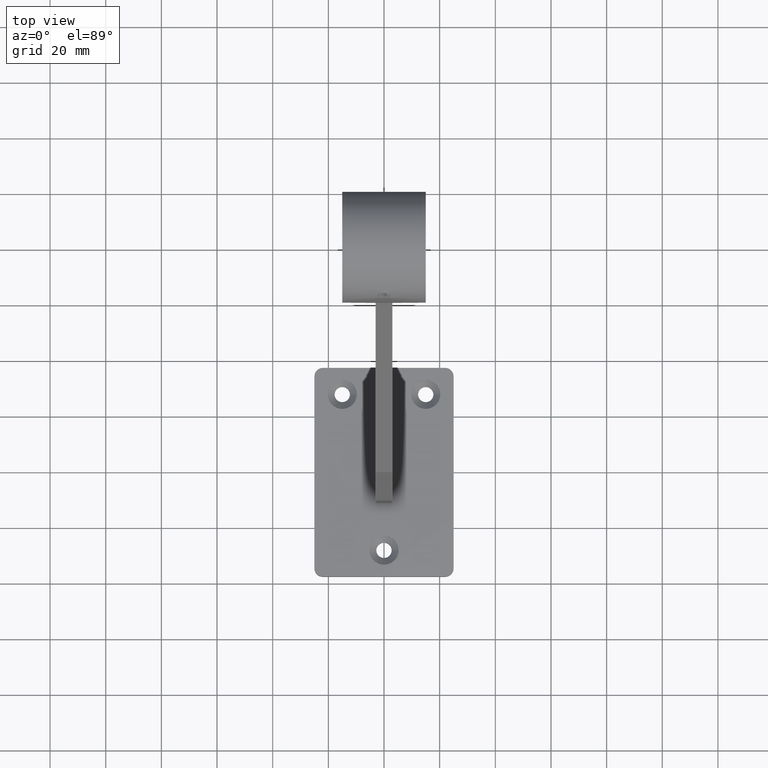
[diagram: clean part render]
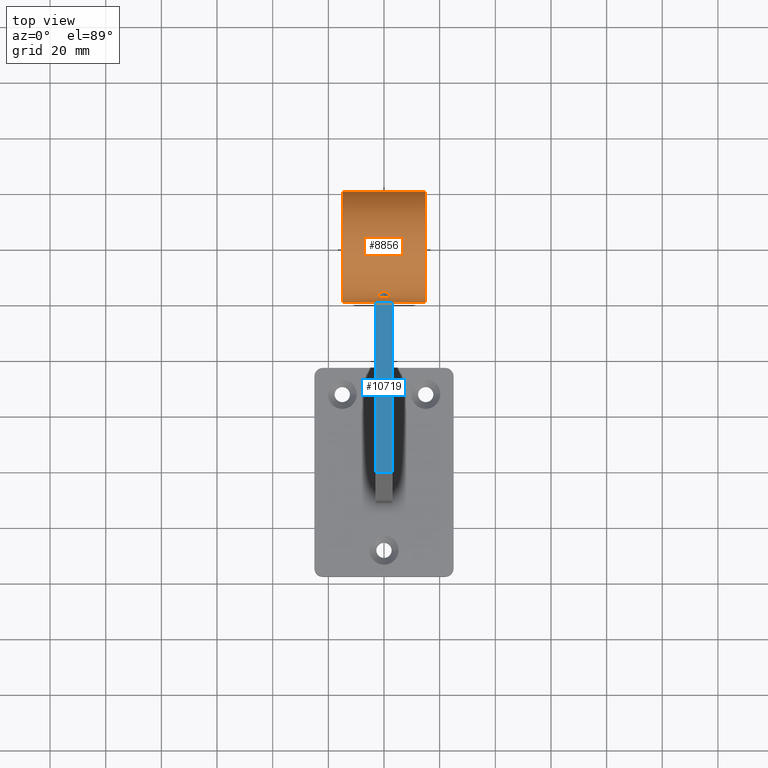
[diagram: same view with the hole feature highlighted: cylindrical wall and planar end face, labeled with their STEP entity ids]
A machine part, top view. The highlighted faces form one hole feature of diameter 40 mm: the cylindrical wall (entity #8856, orange) and its adjacent planar end face (entity #10719, blue) — they share a circular edge in the B-rep.
Wall:
#31 = CARTESIAN_POINT ( 'NONE',  ( -2.099849444172510182, 60.04187292871998949, 209.7616052908302038 ) ) ;
#76 = CARTESIAN_POINT ( 'NONE',  ( 2.086120174710769604, 60.31936522021673142, 210.2393268370281589 ) ) ;
#380 = CARTESIAN_POINT ( 'NONE',  ( 3.000000000000000000, 74.12084583836528395, 180.2875339657386746 ) ) ;
#495 = EDGE_CURVE ( 'NONE', #3199, #3988, #5500, .T. ) ;
#715 = CARTESIAN_POINT ( 'NONE',  ( 15.00000000000000000, 77.50000000000001421, 200.0000000000000000 ) ) ;
#756 = CIRCLE ( 'NONE', #1583, 19.99999999999998934 ) ;
#830 = CYLINDRICAL_SURFACE ( 'NONE', #9199, 19.99999999999998934 ) ;
#875 = CARTESIAN_POINT ( 'NONE',  ( -1.670293940757276996, 60.85481119492352775, 211.0883122554907061 ) ) ;
#912 = CARTESIAN_POINT ( 'NONE',  ( -1.280318656861042292, 59.40476119550915257, 208.5186960749441027 ) ) ;
#1001 = CARTESIAN_POINT ( 'NONE',  ( -1.678640727734455940, 59.56922178814136259, 208.8614267129789539 ) ) ;
#1045 = CARTESIAN_POINT ( 'NONE',  ( -0.9315369050295014830, 59.31315052598299076, 208.3211364556919420 ) ) ;
#1168 = EDGE_CURVE ( 'NONE', #12045, #12045, #756, .T. ) ;
#1583 = AXIS2_PLACEMENT_3D ( 'NONE', #11361, #4693, #12271 ) ;
#1705 = CIRCLE ( 'NONE', #9897, 19.99999999999998934 ) ;
#1829 = EDGE_CURVE ( 'NONE', #7303, #7303, #9042, .T. ) ;
#1843 = CARTESIAN_POINT ( 'NONE',  ( -1.626303258728256651E-16, 59.22523585067133922, 208.1260688703955850 ) ) ;
#1888 = CARTESIAN_POINT ( 'NONE',  ( -2.100074804773034653, 60.24743821746338313, 210.1177021409254735 ) ) ;
#1926 = CARTESIAN_POINT ( 'NONE',  ( -1.052116685481080616, 59.34013478617814741, 208.3800444882257352 ) ) ;
#1977 = EDGE_LOOP ( 'NONE', ( #7965 ) ) ;
#2003 = CARTESIAN_POINT ( 'NONE',  ( 1.991928002489058880, 60.52867097317005118, 210.5825403384284584 ) ) ;
#2012 = VERTEX_POINT ( 'NONE', #5032 ) ;
#2015 = DIRECTION ( 'NONE',  ( 0.000000000000000000, 0.000000000000000000, -1.000000000000000000 ) ) ;
#2327 = FACE_BOUND ( 'NONE', #11472, .T. ) ;
#2351 = ORIENTED_EDGE ( 'NONE', *, *, #495, .F. ) ;
#2622 = CARTESIAN_POINT ( 'NONE',  ( -0.1388385924742107924, 59.22523585067135343, 208.1260688703955850 ) ) ;
#2823 = CARTESIAN_POINT ( 'NONE',  ( -2.086423598058442241, 60.31830531067652146, 210.2375543658677373 ) ) ;
#2944 = CARTESIAN_POINT ( 'NONE',  ( -0.9315325815406654275, 61.20026141186282587, 211.5897078484736085 ) ) ;
#3003 = DIRECTION ( 'NONE',  ( 1.000000000000000000, -0.000000000000000000, 0.000000000000000000 ) ) ;
#3059 = ORIENTED_EDGE ( 'NONE', *, *, #1168, .T. ) ;
#3184 = ORIENTED_EDGE ( 'NONE', *, *, #5961, .T. ) ;
#3199 = VERTEX_POINT ( 'NONE', #11689 ) ;
#3320 = AXIS2_PLACEMENT_3D ( 'NONE', #10477, #7659, #2015 ) ;
#3618 = EDGE_LOOP ( 'NONE', ( #3059 ) ) ;
#3760 = CARTESIAN_POINT ( 'NONE',  ( -0.5463526274472203514, 61.28529523982813743, 211.7082911560165428 ) ) ;
#3804 = CARTESIAN_POINT ( 'NONE',  ( 0.2776771849484437893, 59.22523585067132501, 208.1260688703956134 ) ) ;
#3841 = CARTESIAN_POINT ( 'NONE',  ( 0.2734060226828158857, 61.32529560801894775, 211.7634577332678987 ) ) ;
#3877 = CARTESIAN_POINT ( 'NONE',  ( 1.671365527344146784, 59.57524578909325896, 208.8722185184736304 ) ) ;
#3956 = EDGE_CURVE ( 'NONE', #8507, #6369, #11791, .T. ) ;
#3988 = VERTEX_POINT ( 'NONE', #8895 ) ;
#4110 = EDGE_CURVE ( 'NONE', #2012, #2012, #7895, .T. ) ;
#4504 = AXIS2_PLACEMENT_3D ( 'NONE', #5077, #8511, #5820 ) ;
#4571 = CARTESIAN_POINT ( 'NONE',  ( -1.626303258728256651E-16, 59.22523585067133922, 208.1260688703955850 ) ) ;
#4611 = CARTESIAN_POINT ( 'NONE',  ( 1.582817562824778035, 59.52754173596890297, 208.7749747424895475 ) ) ;
#4654 = ORIENTED_EDGE ( 'NONE', *, *, #10804, .F. ) ;
#4656 = CARTESIAN_POINT ( 'NONE',  ( -1.281598436421852005, 61.07439037770274837, 211.4107483233221387 ) ) ;
#4693 = DIRECTION ( 'NONE',  ( 1.000000000000000000, 0.000000000000000000, 0.000000000000000000 ) ) ;
#4701 = CARTESIAN_POINT ( 'NONE',  ( -1.835071421527967539, 59.67379713497279425, 209.0714069648180384 ) ) ;
#4781 = CARTESIAN_POINT ( 'NONE',  ( -1.887941955898316371, 60.66279453426110280, 210.7946613348223934 ) ) ;
#4989 = CARTESIAN_POINT ( 'NONE',  ( -15.00000000000000000, 77.50000000000001421, 180.0000000000000284 ) ) ;
#5032 = CARTESIAN_POINT ( 'NONE',  ( 0.000000000000000000, 59.22523585067133922, 208.1260688703955566 ) ) ;
#5077 = CARTESIAN_POINT ( 'NONE',  ( -3.000000000000000000, 77.50000000000001421, 200.0000000000000000 ) ) ;
#5500 = LINE ( 'NONE', #12178, #11269 ) ;
#5583 = CARTESIAN_POINT ( 'NONE',  ( 1.058653085803445748, 59.33516931573331732, 208.3695909718071277 ) ) ;
#5624 = CARTESIAN_POINT ( 'NONE',  ( -2.044598998160860770, 59.90882811179424294, 209.5191703685799212 ) ) ;
#5665 = CARTESIAN_POINT ( 'NONE',  ( 2.100129974641061104, 60.11108714310237389, 209.8815467381281508 ) ) ;
#5745 = CARTESIAN_POINT ( 'NONE',  ( 1.289714854292326907, 61.07975200693064721, 211.4198542153818607 ) ) ;
#5820 = DIRECTION ( 'NONE',  ( 0.000000000000000000, 0.000000000000000000, -1.000000000000000000 ) ) ;
#5961 = EDGE_CURVE ( 'NONE', #3199, #8507, #1705, .T. ) ;
#6015 = DIRECTION ( 'NONE',  ( -1.000000000000000000, -0.000000000000000000, -0.000000000000000000 ) ) ;
#6073 = EDGE_LOOP ( 'NONE', ( #8664 ) ) ;
#6369 = VERTEX_POINT ( 'NONE', #8355 ) ;
#6416 = DIRECTION ( 'NONE',  ( 0.000000000000000000, 0.000000000000000000, 1.000000000000000000 ) ) ;
#6515 = CARTESIAN_POINT ( 'NONE',  ( 2.999999999999999112, 74.12084583836526974, 180.2875339657386746 ) ) ;
#6540 = CARTESIAN_POINT ( 'NONE',  ( 1.823527918366160794, 59.67786435056773797, 209.0765938464934095 ) ) ;
#6581 = CARTESIAN_POINT ( 'NONE',  ( 1.580385641318391876, 60.91597224171967184, 211.1794197938089326 ) ) ;
#6618 = CARTESIAN_POINT ( 'NONE',  ( 1.887937962946046877, 59.73293955847541525, 209.1841044441487441 ) ) ;
#6635 = CARTESIAN_POINT ( 'NONE',  ( 3.000000000000000000, 77.50000000000001421, 200.0000000000000000 ) ) ;
#6689 = CARTESIAN_POINT ( 'NONE',  ( -0.6772456063089908884, 61.26188290820380189, 211.6758879477191613 ) ) ;
#7303 = VERTEX_POINT ( 'NONE', #9726 ) ;
#7398 = DIRECTION ( 'NONE',  ( -1.000000000000000000, -0.000000000000000000, -0.000000000000000000 ) ) ;
#7472 = CARTESIAN_POINT ( 'NONE',  ( 0.5535493353344815848, 59.24789673594337813, 208.1775212174377430 ) ) ;
#7512 = CARTESIAN_POINT ( 'NONE',  ( 1.669116737238733883, 60.85568720771730256, 211.0896301907081636 ) ) ;
#7557 = CARTESIAN_POINT ( 'NONE',  ( 0.5498745026592020135, 61.29259813264584267, 211.7188379172320367 ) ) ;
#7602 = CARTESIAN_POINT ( 'NONE',  ( -1.993153845731242546, 60.52676514122894957, 210.5794848484231352 ) ) ;
#7647 = CARTESIAN_POINT ( 'NONE',  ( 1.886288774612089103, 60.66460213246428879, 210.7974787609496730 ) ) ;
#7659 = DIRECTION ( 'NONE',  ( 1.000000000000000000, 0.000000000000000000, 0.000000000000000000 ) ) ;
#7895 = B_SPLINE_CURVE_WITH_KNOTS ( 'NONE', 3,
 ( #4571, #2622, #10189, #11407, #11287, #1045, #1926, #912, #8477, #1001, #4701, #5624, #31, #1888, #2823, #8557, #7602, #4781, #9438, #875, #10378, #9563, #4656, #10341, #2944, #6689, #3760, #8516, #11325, #3841, #7557, #12237, #5745, #6581, #7512, #9519, #7647, #2003, #12196, #76, #8600, #5665, #10463, #12277, #10421, #6618, #6540, #3877, #4611, #11248, #5583, #7472, #3804, #1843 ),
 .UNSPECIFIED., .T., .F.,
 ( 4, 2, 2, 2, 2, 2, 2, 2, 2, 2, 2, 2, 2, 2, 2, 2, 2, 2, 2, 2, 2, 2, 2, 2, 2, 2, 4 ),
 ( 0.000000000000000000, 0.0004105817232938420609, 0.0008211634465876841218, 0.001231745169881526183, 0.001642326893175368244, 0.002463490339763052799, 0.003284653786350737355, 0.003695235509644621049, 0.004105817232938503876, 0.004516398956232387137, 0.004926980679526270397, 0.005337562402820153658, 0.005748144126114036051, 0.006158725849407918444, 0.006569307572701800838, 0.007390471019289567359, 0.008211634465877332145, 0.008622216189171211936, 0.009032797912465089993, 0.009443379635758968049, 0.009853961359052846106, 0.01026454308234672416, 0.01067512480564060395, 0.01108570652893448201, 0.01149628825222836007, 0.01231745169881611097, 0.01313861514540386188 ),
 .UNSPECIFIED. ) ;
#7965 = ORIENTED_EDGE ( 'NONE', *, *, #4110, .T. ) ;
#8236 = VECTOR ( 'NONE', #6015, 1000.000000000000000 ) ;
#8355 = CARTESIAN_POINT ( 'NONE',  ( -3.000000000000000000, 74.12084583836528395, 180.2875339657386746 ) ) ;
#8477 = CARTESIAN_POINT ( 'NONE',  ( -1.388291958094596268, 59.44274066938075407, 208.5991167066655123 ) ) ;
#8497 = DIRECTION ( 'NONE',  ( -1.000000000000000000, -0.000000000000000000, -0.000000000000000000 ) ) ;
#8507 = VERTEX_POINT ( 'NONE', #6515 ) ;
#8511 = DIRECTION ( 'NONE',  ( 1.000000000000000000, -0.000000000000000000, 0.000000000000000000 ) ) ;
#8516 = CARTESIAN_POINT ( 'NONE',  ( -0.2771136652525709176, 61.31703740017357518, 211.7521254990837178 ) ) ;
#8557 = CARTESIAN_POINT ( 'NONE',  ( -2.032816714872088149, 60.45778749359357818, 210.4681012928662938 ) ) ;
#8600 = CARTESIAN_POINT ( 'NONE',  ( 2.099868156458438495, 60.24987795853401451, 210.1218845002854891 ) ) ;
#8664 = ORIENTED_EDGE ( 'NONE', *, *, #1829, .F. ) ;
#8683 = FACE_BOUND ( 'NONE', #1977, .T. ) ;
#8856 = ADVANCED_FACE ( 'NONE', ( #8683, #2327, #10023, #11632 ), #830, .T. ) ;
#8860 = ORIENTED_EDGE ( 'NONE', *, *, #3956, .T. ) ;
#8895 = CARTESIAN_POINT ( 'NONE',  ( -2.999999999999999112, 57.50219460150118067, 200.2962756212895954 ) ) ;
#9042 = CIRCLE ( 'NONE', #3320, 19.99999999999998934 ) ;
#9199 = AXIS2_PLACEMENT_3D ( 'NONE', #715, #7398, #6416 ) ;
#9438 = CARTESIAN_POINT ( 'NONE',  ( -1.822230407810646824, 60.72957123891194442, 210.8979676179174874 ) ) ;
#9459 = DIRECTION ( 'NONE',  ( 0.000000000000000000, 0.000000000000000000, -1.000000000000000000 ) ) ;
#9519 = CARTESIAN_POINT ( 'NONE',  ( 1.821687769751059172, 60.73011181900297117, 210.8988025255468983 ) ) ;
#9563 = CARTESIAN_POINT ( 'NONE',  ( -1.387567715643934552, 61.02475921947532811, 211.3391407017691961 ) ) ;
#9726 = CARTESIAN_POINT ( 'NONE',  ( 15.00000000000000000, 77.50000000000001421, 180.0000000000000284 ) ) ;
#9897 = AXIS2_PLACEMENT_3D ( 'NONE', #6635, #3003, #9459 ) ;
#10023 = FACE_OUTER_BOUND ( 'NONE', #6073, .T. ) ;
#10140 = CIRCLE ( 'NONE', #4504, 19.99999999999998934 ) ;
#10189 = CARTESIAN_POINT ( 'NONE',  ( -0.2753378390149406885, 59.23079417850183859, 208.1386017932413495 ) ) ;
#10341 = CARTESIAN_POINT ( 'NONE',  ( -1.054302831592097034, 61.16198468334339822, 211.5358174515288567 ) ) ;
#10378 = CARTESIAN_POINT ( 'NONE',  ( -1.583538030936288754, 60.91405013584623873, 211.1765798764452313 ) ) ;
#10421 = CARTESIAN_POINT ( 'NONE',  ( 1.993178338994316068, 59.85130975786972840, 209.4095666165427758 ) ) ;
#10463 = CARTESIAN_POINT ( 'NONE',  ( 2.086612316092267605, 60.04398536943757136, 209.7624582645541125 ) ) ;
#10477 = CARTESIAN_POINT ( 'NONE',  ( 15.00000000000000000, 77.50000000000001421, 200.0000000000000000 ) ) ;
#10804 = EDGE_CURVE ( 'NONE', #3988, #6369, #10140, .T. ) ;
#11248 = CARTESIAN_POINT ( 'NONE',  ( 1.292631684451352347, 59.40094585015133788, 208.5124608671948181 ) ) ;
#11269 = VECTOR ( 'NONE', #8497, 1000.000000000000000 ) ;
#11287 = CARTESIAN_POINT ( 'NONE',  ( -0.6772713382370241231, 59.26932982012758799, 208.2246866504146681 ) ) ;
#11325 = CARTESIAN_POINT ( 'NONE',  ( -0.1378654482602234277, 61.32520584514259099, 211.7633343083743682 ) ) ;
#11361 = CARTESIAN_POINT ( 'NONE',  ( -15.00000000000000000, 77.50000000000001421, 200.0000000000000000 ) ) ;
#11407 = CARTESIAN_POINT ( 'NONE',  ( -0.5438549189149378682, 59.25270565295462433, 208.1876107326556564 ) ) ;
#11472 = EDGE_LOOP ( 'NONE', ( #3184, #8860, #4654, #2351 ) ) ;
#11632 = FACE_OUTER_BOUND ( 'NONE', #3618, .T. ) ;
#11689 = CARTESIAN_POINT ( 'NONE',  ( 3.000000000000000888, 57.50219460150117357, 200.2962756212895954 ) ) ;
#11791 = LINE ( 'NONE', #380, #8236 ) ;
#12045 = VERTEX_POINT ( 'NONE', #4989 ) ;
#12178 = CARTESIAN_POINT ( 'NONE',  ( 3.000000000000000000, 57.50219460150117357, 200.2962756212895954 ) ) ;
#12196 = CARTESIAN_POINT ( 'NONE',  ( 2.032483938791213696, 60.45837970725863642, 210.4690593326148473 ) ) ;
#12237 = CARTESIAN_POINT ( 'NONE',  ( 1.055463381715609605, 61.17037885596010938, 211.5479223547958725 ) ) ;
#12271 = DIRECTION ( 'NONE',  ( 0.000000000000000000, 0.000000000000000000, -1.000000000000000000 ) ) ;
#12277 = CARTESIAN_POINT ( 'NONE',  ( 2.033456121545067052, 59.91444973572954780, 209.5271433311558269 ) ) ;
End face:
#495 = EDGE_CURVE ( 'NONE', #3199, #3988, #5500, .T. ) ;
#829 = DIRECTION ( 'NONE',  ( 0.000000000000000000, -0.9271838545667857590, 0.3746065934159160671 ) ) ;
#1464 = LINE ( 'NONE', #5053, #12247 ) ;
#1773 = AXIS2_PLACEMENT_3D ( 'NONE', #11202, #829, #6537 ) ;
#1895 = VECTOR ( 'NONE', #8314, 1000.000000000000000 ) ;
#3188 = ORIENTED_EDGE ( 'NONE', *, *, #8845, .T. ) ;
#3199 = VERTEX_POINT ( 'NONE', #11689 ) ;
#3988 = VERTEX_POINT ( 'NONE', #8895 ) ;
#4091 = VERTEX_POINT ( 'NONE', #10146 ) ;
#4538 = CARTESIAN_POINT ( 'NONE',  ( 3.000000000000000000, -20.13583632345676833, 8.135405953800800560 ) ) ;
#4855 = EDGE_CURVE ( 'NONE', #4091, #6170, #1464, .T. ) ;
#5053 = CARTESIAN_POINT ( 'NONE',  ( 3.000000000000000000, -0.7972850398387416604, 56.00000000000000711 ) ) ;
#5500 = LINE ( 'NONE', #12178, #11269 ) ;
#5992 = EDGE_CURVE ( 'NONE', #6170, #3988, #8496, .T. ) ;
#5995 = FACE_OUTER_BOUND ( 'NONE', #9225, .T. ) ;
#6053 = DIRECTION ( 'NONE',  ( -1.000000000000000000, -0.000000000000000000, -0.000000000000000000 ) ) ;
#6170 = VERTEX_POINT ( 'NONE', #9989 ) ;
#6537 = DIRECTION ( 'NONE',  ( 0.000000000000000000, -0.3746065934159160671, -0.9271838545667857590 ) ) ;
#7493 = ORIENTED_EDGE ( 'NONE', *, *, #495, .T. ) ;
#7680 = ORIENTED_EDGE ( 'NONE', *, *, #5992, .F. ) ;
#8125 = CARTESIAN_POINT ( 'NONE',  ( -3.000000000000000000, -20.13583632345676833, 8.135405953800800560 ) ) ;
#8314 = DIRECTION ( 'NONE',  ( 0.000000000000000000, 0.3746065934159160671, 0.9271838545667857590 ) ) ;
#8473 = PLANE ( 'NONE',  #1773 ) ;
#8496 = LINE ( 'NONE', #8125, #11150 ) ;
#8497 = DIRECTION ( 'NONE',  ( -1.000000000000000000, -0.000000000000000000, -0.000000000000000000 ) ) ;
#8662 = DIRECTION ( 'NONE',  ( 0.000000000000000000, 0.3746065934159160671, 0.9271838545667857590 ) ) ;
#8845 = EDGE_CURVE ( 'NONE', #4091, #3199, #9425, .T. ) ;
#8895 = CARTESIAN_POINT ( 'NONE',  ( -2.999999999999999112, 57.50219460150118067, 200.2962756212895954 ) ) ;
#9225 = EDGE_LOOP ( 'NONE', ( #7680, #12112, #3188, #7493 ) ) ;
#9425 = LINE ( 'NONE', #4538, #1895 ) ;
#9989 = CARTESIAN_POINT ( 'NONE',  ( -3.000000000000000000, -0.7972850398387416604, 56.00000000000000711 ) ) ;
#10146 = CARTESIAN_POINT ( 'NONE',  ( 3.000000000000000000, -0.7972850398387416604, 56.00000000000000711 ) ) ;
#10719 = ADVANCED_FACE ( 'NONE', ( #5995 ), #8473, .T. ) ;
#11150 = VECTOR ( 'NONE', #8662, 1000.000000000000000 ) ;
#11202 = CARTESIAN_POINT ( 'NONE',  ( 3.000000000000000000, -20.13583632345676833, 8.135405953800800560 ) ) ;
#11269 = VECTOR ( 'NONE', #8497, 1000.000000000000000 ) ;
#11689 = CARTESIAN_POINT ( 'NONE',  ( 3.000000000000000888, 57.50219460150117357, 200.2962756212895954 ) ) ;
#12112 = ORIENTED_EDGE ( 'NONE', *, *, #4855, .F. ) ;
#12178 = CARTESIAN_POINT ( 'NONE',  ( 3.000000000000000000, 57.50219460150117357, 200.2962756212895954 ) ) ;
#12247 = VECTOR ( 'NONE', #6053, 1000.000000000000000 ) ;